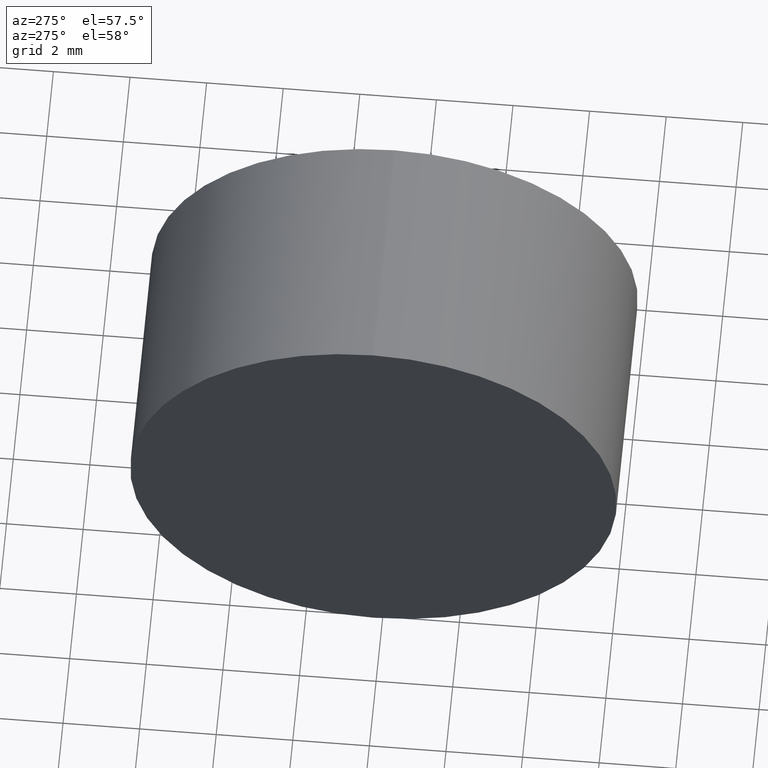
[diagram: clean part render]
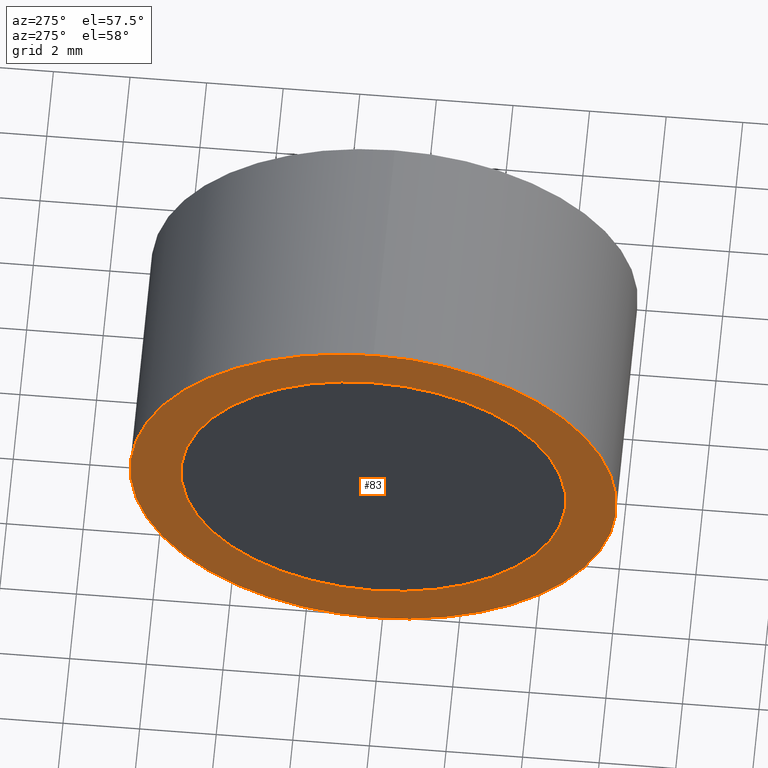
[diagram: same view with one face highlighted and labeled with its STEP entity id]
A machine part, auxiliary view. The second image highlights one B-rep face of the part: STEP entity #83.
In plain terms, the highlighted planar face has unit normal (1, 0, 0).
Its self-contained STEP definition (entity closure, byte-faithful):
#1 = EDGE_CURVE ( 'NONE', #427, #516, #292, .T. ) ;
#9 = FACE_OUTER_BOUND ( 'NONE', #485, .T. ) ;
#14 = AXIS2_PLACEMENT_3D ( 'NONE', #100, #407, #655 ) ;
#38 = EDGE_LOOP ( 'NONE', ( #375, #170 ) ) ;
#42 = DIRECTION ( 'NONE',  ( 1.000000000000000000, 0.0000000000000000000, 0.0000000000000000000 ) ) ;
#46 = CARTESIAN_POINT ( 'NONE',  ( 227.7645190849216300, 108.2256958952383700, 5.025000000000002100 ) ) ;
#55 = EDGE_CURVE ( 'NONE', #516, #427, #660, .T. ) ;
#83 = ADVANCED_FACE ( 'NONE', ( #507, #9 ), #236, .F. ) ;
#100 = CARTESIAN_POINT ( 'NONE',  ( 227.7645190849216300, 108.2256958952383700, 0.0000000000000000000 ) ) ;
#139 = CARTESIAN_POINT ( 'NONE',  ( 227.7645190849216300, 108.2256958952383700, 0.0000000000000000000 ) ) ;
#141 = EDGE_CURVE ( 'NONE', #593, #332, #505, .T. ) ;
#160 = DIRECTION ( 'NONE',  ( -1.000000000000000000, -0.0000000000000000000, -0.0000000000000000000 ) ) ;
#170 = ORIENTED_EDGE ( 'NONE', *, *, #141, .F. ) ;
#176 = CARTESIAN_POINT ( 'NONE',  ( 227.7645190849216300, 108.2256958952383700, 0.0000000000000000000 ) ) ;
#194 = CARTESIAN_POINT ( 'NONE',  ( 227.7645190849216300, 108.2256958952383700, -5.025000000000002100 ) ) ;
#206 = CIRCLE ( 'NONE', #654, 5.025000000000002100 ) ;
#223 = ORIENTED_EDGE ( 'NONE', *, *, #1, .T. ) ;
#236 = PLANE ( 'NONE',  #562 ) ;
#275 = DIRECTION ( 'NONE',  ( 0.0000000000000000000, 0.0000000000000000000, 1.000000000000000000 ) ) ;
#283 = DIRECTION ( 'NONE',  ( 0.0000000000000000000, 0.0000000000000000000, -1.000000000000000000 ) ) ;
#290 = DIRECTION ( 'NONE',  ( 0.0000000000000000000, 0.0000000000000000000, 1.000000000000000000 ) ) ;
#292 = CIRCLE ( 'NONE', #334, 6.350000000000008500 ) ;
#294 = CARTESIAN_POINT ( 'NONE',  ( 227.7645190849216300, 0.0000000000000000000, 0.0000000000000000000 ) ) ;
#295 = CARTESIAN_POINT ( 'NONE',  ( 227.7645190849216300, 108.2256958952383700, -6.350000000000008500 ) ) ;
#325 = DIRECTION ( 'NONE',  ( -1.000000000000000000, -0.0000000000000000000, -0.0000000000000000000 ) ) ;
#332 = VERTEX_POINT ( 'NONE', #46 ) ;
#334 = AXIS2_PLACEMENT_3D ( 'NONE', #411, #160, #511 ) ;
#375 = ORIENTED_EDGE ( 'NONE', *, *, #623, .F. ) ;
#407 = DIRECTION ( 'NONE',  ( -1.000000000000000000, -0.0000000000000000000, -0.0000000000000000000 ) ) ;
#411 = CARTESIAN_POINT ( 'NONE',  ( 227.7645190849216300, 108.2256958952383700, 0.0000000000000000000 ) ) ;
#427 = VERTEX_POINT ( 'NONE', #575 ) ;
#485 = EDGE_LOOP ( 'NONE', ( #223, #609 ) ) ;
#504 = AXIS2_PLACEMENT_3D ( 'NONE', #176, #325, #275 ) ;
#505 = CIRCLE ( 'NONE', #14, 5.025000000000002100 ) ;
#507 = FACE_BOUND ( 'NONE', #38, .T. ) ;
#511 = DIRECTION ( 'NONE',  ( 0.0000000000000000000, 0.0000000000000000000, 1.000000000000000000 ) ) ;
#516 = VERTEX_POINT ( 'NONE', #295 ) ;
#562 = AXIS2_PLACEMENT_3D ( 'NONE', #294, #42, #283 ) ;
#575 = CARTESIAN_POINT ( 'NONE',  ( 227.7645190849216300, 108.2256958952383700, 6.350000000000008500 ) ) ;
#589 = DIRECTION ( 'NONE',  ( -1.000000000000000000, -0.0000000000000000000, -0.0000000000000000000 ) ) ;
#593 = VERTEX_POINT ( 'NONE', #194 ) ;
#609 = ORIENTED_EDGE ( 'NONE', *, *, #55, .T. ) ;
#623 = EDGE_CURVE ( 'NONE', #332, #593, #206, .T. ) ;
#654 = AXIS2_PLACEMENT_3D ( 'NONE', #139, #589, #290 ) ;
#655 = DIRECTION ( 'NONE',  ( 0.0000000000000000000, 0.0000000000000000000, 1.000000000000000000 ) ) ;
#660 = CIRCLE ( 'NONE', #504, 6.350000000000008500 ) ;